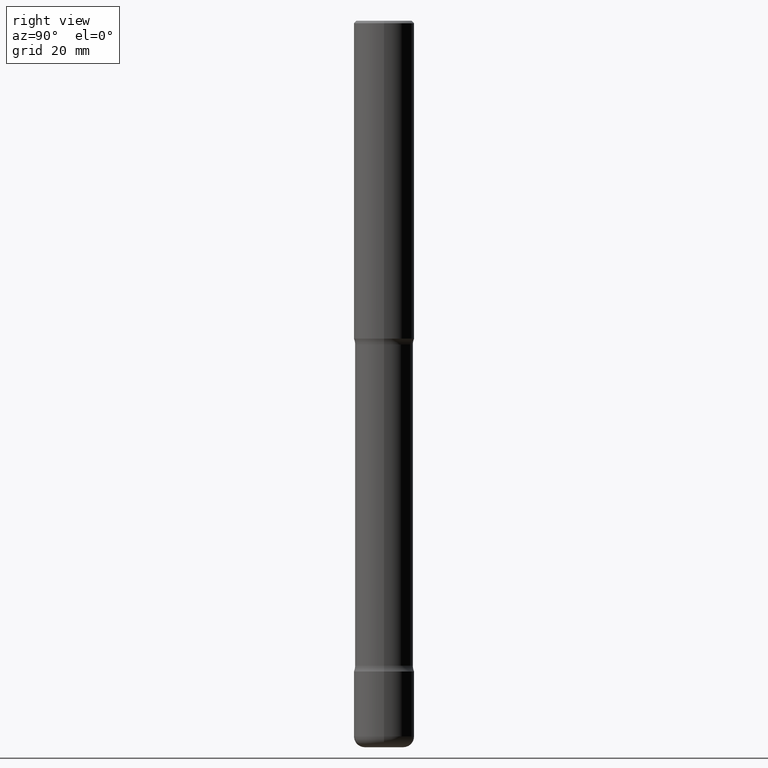
[diagram: clean part render]
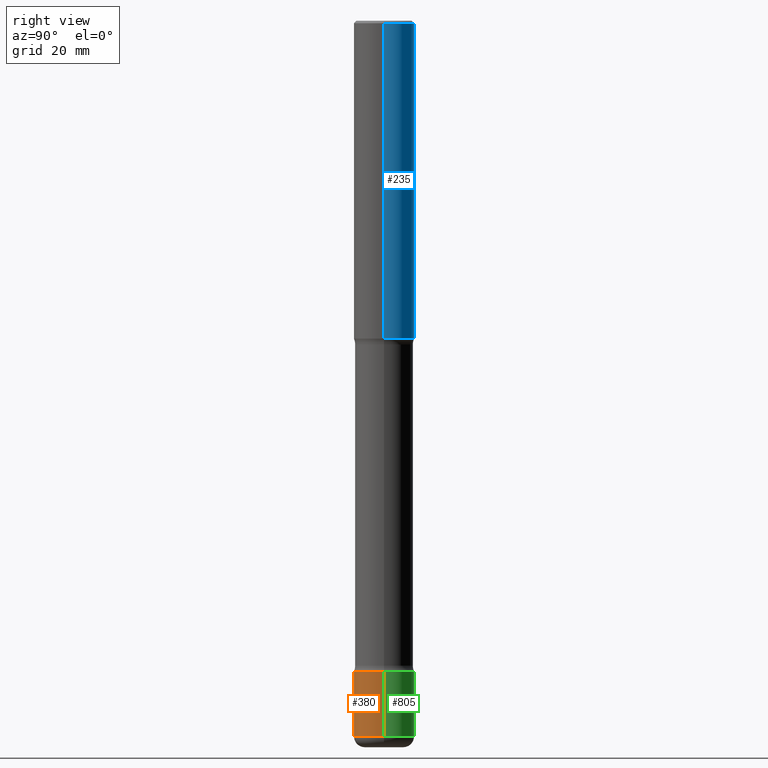
[diagram: same view with three faces highlighted in distinct colors, each labeled with its STEP entity id]
A machine part, right view with three faces highlighted in distinct colors.
Their STEP definitions:

[orange] entity #380 — the highlighted cylindrical surface (edge-blend (fillet) strip) has radius 6.35 mm, axis along (-0, 0, 1).
#56 = ORIENTED_EDGE ( 'NONE', *, *, #171, .T. ) ;
#66 = VERTEX_POINT ( 'NONE', #321 ) ;
#78 = CARTESIAN_POINT ( 'NONE',  ( -0.2500000000000000000, 1.776356839400250465E-15, -1.229733772563726445E-29 ) ) ;
#83 = AXIS2_PLACEMENT_3D ( 'NONE', #547, #360, #234 ) ;
#142 = EDGE_CURVE ( 'NONE', #228, #247, #285, .T. ) ;
#146 = CARTESIAN_POINT ( 'NONE',  ( 0.2500000000000001110, -2.238039538198455612E-14, -5.910000000000000142 ) ) ;
#147 = AXIS2_PLACEMENT_3D ( 'NONE', #523, #223, #160 ) ;
#160 = DIRECTION ( 'NONE',  ( 1.000000000000000000, -6.982962677686262766E-15, 0.000000000000000000 ) ) ;
#171 = EDGE_CURVE ( 'NONE', #66, #228, #308, .T. ) ;
#223 = DIRECTION ( 'NONE',  ( -2.445468806185136597E-29, 3.491481338843145583E-15, 1.000000000000000000 ) ) ;
#226 = DIRECTION ( 'NONE',  ( -2.445468806185136877E-29, 3.491481338843145188E-15, 1.000000000000000000 ) ) ;
#228 = VERTEX_POINT ( 'NONE', #146 ) ;
#234 = DIRECTION ( 'NONE',  ( 1.000000000000000000, -6.982962677686262766E-15, 0.000000000000000000 ) ) ;
#239 = DIRECTION ( 'NONE',  ( -2.445468806185136597E-29, 3.491481338843145583E-15, 1.000000000000000000 ) ) ;
#247 = VERTEX_POINT ( 'NONE', #652 ) ;
#257 = VECTOR ( 'NONE', #329, 39.37007874015748143 ) ;
#266 = VECTOR ( 'NONE', #226, 39.37007874015748143 ) ;
#285 = LINE ( 'NONE', #339, #266 ) ;
#308 = CIRCLE ( 'NONE', #147, 0.2500000000000000000 ) ;
#321 = CARTESIAN_POINT ( 'NONE',  ( -0.2500000000000001110, -1.885829787316274213E-14, -5.910000000000000142 ) ) ;
#329 = DIRECTION ( 'NONE',  ( -2.445468806185136877E-29, 3.491481338843145188E-15, 1.000000000000000000 ) ) ;
#339 = CARTESIAN_POINT ( 'NONE',  ( 0.2500000000000000000, -1.745740669421566678E-15, 1.219044193948983948E-29 ) ) ;
#355 = DIRECTION ( 'NONE',  ( 1.000000000000000000, -6.982962677686266711E-15, 4.876176775795935793E-29 ) ) ;
#360 = DIRECTION ( 'NONE',  ( -2.445468806185136597E-29, 3.491481338843145583E-15, 1.000000000000000000 ) ) ;
#361 = EDGE_LOOP ( 'NONE', ( #388, #56, #442, #681 ) ) ;
#375 = EDGE_CURVE ( 'NONE', #483, #247, #802, .T. ) ;
#380 = ADVANCED_FACE ( 'NONE', ( #427 ), #410, .T. ) ;
#388 = ORIENTED_EDGE ( 'NONE', *, *, #747, .F. ) ;
#410 = CYLINDRICAL_SURFACE ( 'NONE', #546, 0.2500000000000000000 ) ;
#427 = FACE_OUTER_BOUND ( 'NONE', #361, .T. ) ;
#442 = ORIENTED_EDGE ( 'NONE', *, *, #142, .T. ) ;
#483 = VERTEX_POINT ( 'NONE', #668 ) ;
#523 = CARTESIAN_POINT ( 'NONE',  ( 1.445272064455415567E-28, -2.063465471256298944E-14, -5.910000000000000142 ) ) ;
#546 = AXIS2_PLACEMENT_3D ( 'NONE', #608, #239, #355 ) ;
#547 = CARTESIAN_POINT ( 'NONE',  ( 1.314439483324511145E-28, -1.876671219628190963E-14, -5.375000000000000888 ) ) ;
#608 = CARTESIAN_POINT ( 'NONE',  ( 0.000000000000000000, 0.000000000000000000, 0.000000000000000000 ) ) ;
#637 = LINE ( 'NONE', #78, #257 ) ;
#652 = CARTESIAN_POINT ( 'NONE',  ( 0.2500000000000000000, -2.051245286570347630E-14, -5.375000000000000888 ) ) ;
#668 = CARTESIAN_POINT ( 'NONE',  ( -0.2500000000000000000, -1.792432661502220065E-14, -5.375000000000000888 ) ) ;
#681 = ORIENTED_EDGE ( 'NONE', *, *, #375, .F. ) ;
#747 = EDGE_CURVE ( 'NONE', #66, #483, #637, .T. ) ;
#802 = CIRCLE ( 'NONE', #83, 0.2500000000000000000 ) ;

[blue] entity #235 — the highlighted cylindrical surface (edge-blend (fillet) strip) has radius 6.35 mm, axis along (-0, 0, 1).
#21 = CARTESIAN_POINT ( 'NONE',  ( -0.2499999999999999722, -2.841127231219808307E-15, -2.625000000000000444 ) ) ;
#30 = DIRECTION ( 'NONE',  ( -2.445468806185136597E-29, 3.491481338843145583E-15, 1.000000000000000000 ) ) ;
#45 = DIRECTION ( 'NONE',  ( 1.000000000000000000, -6.982962677686266711E-15, 0.000000000000000000 ) ) ;
#52 = AXIS2_PLACEMENT_3D ( 'NONE', #107, #365, #45 ) ;
#55 = ORIENTED_EDGE ( 'NONE', *, *, #494, .F. ) ;
#107 = CARTESIAN_POINT ( 'NONE',  ( 4.890937612370287172E-31, -6.982962677686310098E-17, -0.02000000000000005593 ) ) ;
#115 = CARTESIAN_POINT ( 'NONE',  ( -0.2499999999999997224, 1.675911042644701605E-15, -0.02000000000000005593 ) ) ;
#177 = VERTEX_POINT ( 'NONE', #21 ) ;
#203 = EDGE_LOOP ( 'NONE', ( #636, #592, #55, #215 ) ) ;
#205 = LINE ( 'NONE', #563, #447 ) ;
#213 = CYLINDRICAL_SURFACE ( 'NONE', #431, 0.2499999999999998612 ) ;
#215 = ORIENTED_EDGE ( 'NONE', *, *, #263, .F. ) ;
#235 = ADVANCED_FACE ( 'NONE', ( #701 ), #213, .T. ) ;
#263 = EDGE_CURVE ( 'NONE', #625, #704, #462, .T. ) ;
#274 = CARTESIAN_POINT ( 'NONE',  ( 0.000000000000000000, 0.000000000000000000, 0.000000000000000000 ) ) ;
#318 = AXIS2_PLACEMENT_3D ( 'NONE', #436, #486, #623 ) ;
#344 = CARTESIAN_POINT ( 'NONE',  ( 0.2500000000000000000, -1.091087918388482487E-14, -2.625000000000000444 ) ) ;
#365 = DIRECTION ( 'NONE',  ( -2.445468806185136597E-29, 3.491481338843145583E-15, 1.000000000000000000 ) ) ;
#402 = DIRECTION ( 'NONE',  ( -2.445468806185136877E-29, 3.491481338843145188E-15, 1.000000000000000000 ) ) ;
#409 = CIRCLE ( 'NONE', #52, 0.2499999999999997224 ) ;
#431 = AXIS2_PLACEMENT_3D ( 'NONE', #274, #30, #518 ) ;
#436 = CARTESIAN_POINT ( 'NONE',  ( 6.419355616235984688E-29, -9.165138514463258190E-15, -2.625000000000000444 ) ) ;
#447 = VECTOR ( 'NONE', #510, 39.37007874015748143 ) ;
#462 = LINE ( 'NONE', #639, #664 ) ;
#486 = DIRECTION ( 'NONE',  ( -2.445468806185136597E-29, 3.491481338843145583E-15, 1.000000000000000000 ) ) ;
#494 = EDGE_CURVE ( 'NONE', #704, #588, #409, .T. ) ;
#510 = DIRECTION ( 'NONE',  ( -2.445468806185136877E-29, 3.491481338843145188E-15, 1.000000000000000000 ) ) ;
#518 = DIRECTION ( 'NONE',  ( 1.000000000000000000, -6.982962677686266711E-15, 4.876176775795935793E-29 ) ) ;
#550 = EDGE_CURVE ( 'NONE', #625, #177, #689, .T. ) ;
#563 = CARTESIAN_POINT ( 'NONE',  ( -0.2499999999999998612, 1.776356839400249479E-15, -1.229733772563725745E-29 ) ) ;
#588 = VERTEX_POINT ( 'NONE', #115 ) ;
#592 = ORIENTED_EDGE ( 'NONE', *, *, #647, .T. ) ;
#623 = DIRECTION ( 'NONE',  ( 1.000000000000000000, -6.982962677686262766E-15, 0.000000000000000000 ) ) ;
#625 = VERTEX_POINT ( 'NONE', #344 ) ;
#636 = ORIENTED_EDGE ( 'NONE', *, *, #550, .T. ) ;
#639 = CARTESIAN_POINT ( 'NONE',  ( 0.2499999999999998612, -1.745740669421565692E-15, 1.219044193948983248E-29 ) ) ;
#647 = EDGE_CURVE ( 'NONE', #177, #588, #205, .T. ) ;
#664 = VECTOR ( 'NONE', #402, 39.37007874015748143 ) ;
#689 = CIRCLE ( 'NONE', #318, 0.2500000000000000000 ) ;
#701 = FACE_OUTER_BOUND ( 'NONE', #203, .T. ) ;
#704 = VERTEX_POINT ( 'NONE', #757 ) ;
#757 = CARTESIAN_POINT ( 'NONE',  ( 0.2499999999999997224, -1.784954126219744217E-15, -0.02000000000000005593 ) ) ;

[green] entity #805 — the highlighted cylindrical surface (edge-blend (fillet) strip) has radius 6.35 mm, axis along (-0, 0, 1).
#29 = DIRECTION ( 'NONE',  ( -2.445468806185136597E-29, 3.491481338843145583E-15, 1.000000000000000000 ) ) ;
#66 = VERTEX_POINT ( 'NONE', #321 ) ;
#69 = ORIENTED_EDGE ( 'NONE', *, *, #142, .F. ) ;
#78 = CARTESIAN_POINT ( 'NONE',  ( -0.2500000000000000000, 1.776356839400250465E-15, -1.229733772563726445E-29 ) ) ;
#118 = CIRCLE ( 'NONE', #599, 0.2500000000000000000 ) ;
#142 = EDGE_CURVE ( 'NONE', #228, #247, #285, .T. ) ;
#146 = CARTESIAN_POINT ( 'NONE',  ( 0.2500000000000001110, -2.238039538198455612E-14, -5.910000000000000142 ) ) ;
#178 = FACE_OUTER_BOUND ( 'NONE', #595, .T. ) ;
#218 = DIRECTION ( 'NONE',  ( 1.000000000000000000, -6.982962677686262766E-15, 0.000000000000000000 ) ) ;
#226 = DIRECTION ( 'NONE',  ( -2.445468806185136877E-29, 3.491481338843145188E-15, 1.000000000000000000 ) ) ;
#228 = VERTEX_POINT ( 'NONE', #146 ) ;
#247 = VERTEX_POINT ( 'NONE', #652 ) ;
#257 = VECTOR ( 'NONE', #329, 39.37007874015748143 ) ;
#266 = VECTOR ( 'NONE', #226, 39.37007874015748143 ) ;
#278 = DIRECTION ( 'NONE',  ( 1.000000000000000000, -6.982962677686262766E-15, 0.000000000000000000 ) ) ;
#285 = LINE ( 'NONE', #339, #266 ) ;
#301 = EDGE_CURVE ( 'NONE', #247, #483, #316, .T. ) ;
#311 = AXIS2_PLACEMENT_3D ( 'NONE', #475, #29, #789 ) ;
#316 = CIRCLE ( 'NONE', #419, 0.2500000000000000000 ) ;
#321 = CARTESIAN_POINT ( 'NONE',  ( -0.2500000000000001110, -1.885829787316274213E-14, -5.910000000000000142 ) ) ;
#329 = DIRECTION ( 'NONE',  ( -2.445468806185136877E-29, 3.491481338843145188E-15, 1.000000000000000000 ) ) ;
#339 = CARTESIAN_POINT ( 'NONE',  ( 0.2500000000000000000, -1.745740669421566678E-15, 1.219044193948983948E-29 ) ) ;
#354 = CYLINDRICAL_SURFACE ( 'NONE', #311, 0.2500000000000000000 ) ;
#393 = ORIENTED_EDGE ( 'NONE', *, *, #724, .T. ) ;
#401 = DIRECTION ( 'NONE',  ( -2.445468806185136597E-29, 3.491481338843145583E-15, 1.000000000000000000 ) ) ;
#419 = AXIS2_PLACEMENT_3D ( 'NONE', #577, #454, #278 ) ;
#454 = DIRECTION ( 'NONE',  ( -2.445468806185136597E-29, 3.491481338843145583E-15, 1.000000000000000000 ) ) ;
#464 = CARTESIAN_POINT ( 'NONE',  ( 1.445272064455415567E-28, -2.063465471256298944E-14, -5.910000000000000142 ) ) ;
#475 = CARTESIAN_POINT ( 'NONE',  ( 0.000000000000000000, 0.000000000000000000, 0.000000000000000000 ) ) ;
#483 = VERTEX_POINT ( 'NONE', #668 ) ;
#577 = CARTESIAN_POINT ( 'NONE',  ( 1.314439483324511145E-28, -1.876671219628190963E-14, -5.375000000000000888 ) ) ;
#583 = ORIENTED_EDGE ( 'NONE', *, *, #301, .F. ) ;
#595 = EDGE_LOOP ( 'NONE', ( #393, #732, #583, #69 ) ) ;
#599 = AXIS2_PLACEMENT_3D ( 'NONE', #464, #401, #218 ) ;
#637 = LINE ( 'NONE', #78, #257 ) ;
#652 = CARTESIAN_POINT ( 'NONE',  ( 0.2500000000000000000, -2.051245286570347630E-14, -5.375000000000000888 ) ) ;
#668 = CARTESIAN_POINT ( 'NONE',  ( -0.2500000000000000000, -1.792432661502220065E-14, -5.375000000000000888 ) ) ;
#724 = EDGE_CURVE ( 'NONE', #228, #66, #118, .T. ) ;
#732 = ORIENTED_EDGE ( 'NONE', *, *, #747, .T. ) ;
#747 = EDGE_CURVE ( 'NONE', #66, #483, #637, .T. ) ;
#789 = DIRECTION ( 'NONE',  ( 1.000000000000000000, -6.982962677686266711E-15, 4.876176775795935793E-29 ) ) ;
#805 = ADVANCED_FACE ( 'NONE', ( #178 ), #354, .T. ) ;